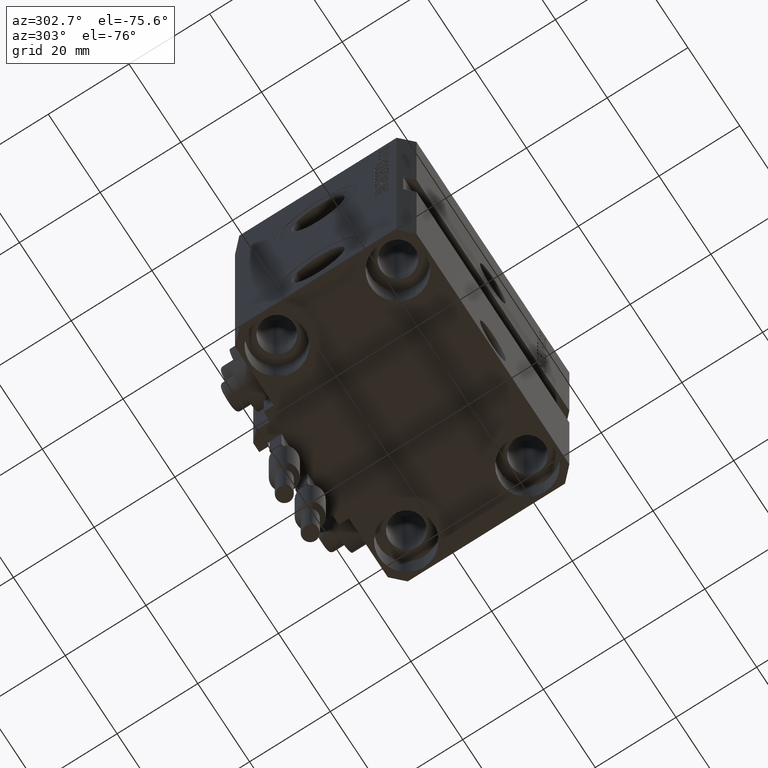
[diagram: clean part render]
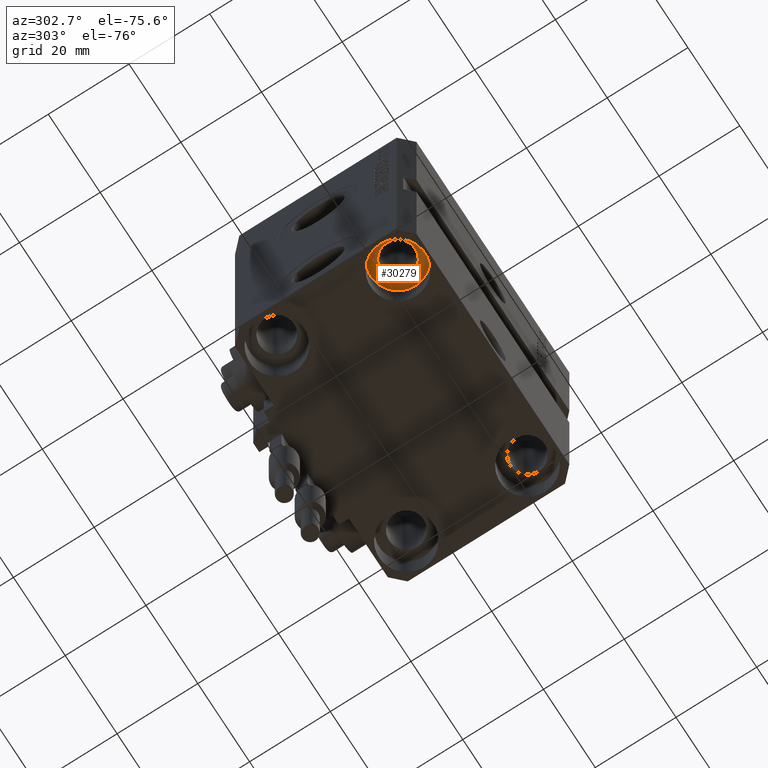
[diagram: same view with one face highlighted and labeled with its STEP entity id]
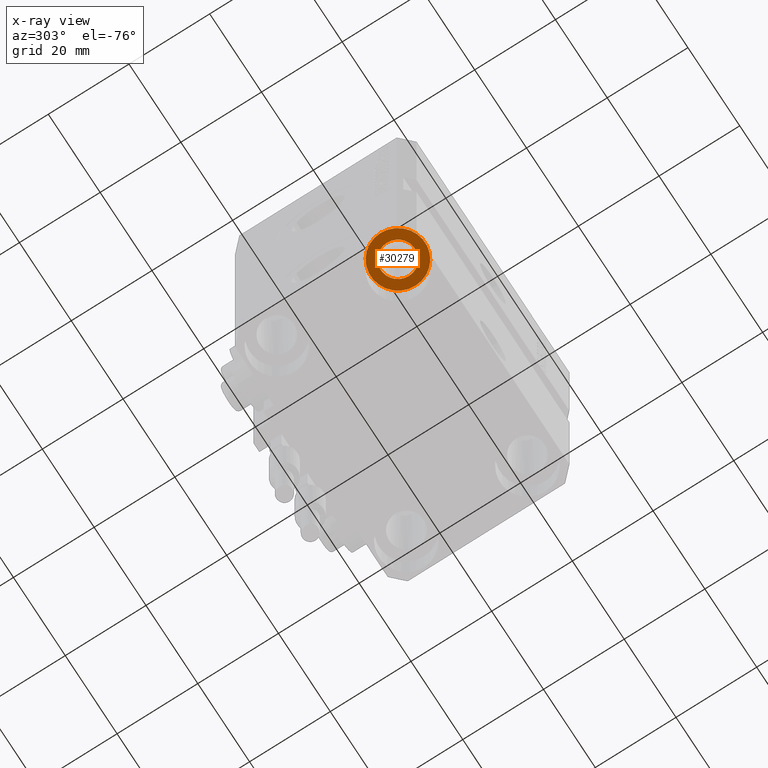
[diagram: x-ray of the same camera — body ghosted, the highlighted face saturated]
A machine part, auxiliary view. The second image highlights one B-rep face of the part: STEP entity #30279.
The next image is the same camera in x-ray: the body ghosted, the highlighted face saturated — about 0% of this face is hidden behind the body in this view.
In plain terms, the highlighted planar face has unit normal (0, 0, -1).
Its self-contained STEP definition (entity closure, byte-faithful):
#890 = EDGE_LOOP ( 'NONE', ( #30896, #26093 ) ) ;
#2555 = AXIS2_PLACEMENT_3D ( 'NONE', #25049, #13638, #20927 ) ;
#3192 = PLANE ( 'NONE',  #28669 ) ;
#4524 = VERTEX_POINT ( 'NONE', #47265 ) ;
#5162 = DIRECTION ( 'NONE',  ( -1.000000000000000000, 0.000000000000000000, 0.000000000000000000 ) ) ;
#5592 = VERTEX_POINT ( 'NONE', #46861 ) ;
#5789 = ORIENTED_EDGE ( 'NONE', *, *, #15936, .F. ) ;
#7679 = CARTESIAN_POINT ( 'NONE',  ( -31.75000000004154899, -15.00000000000000000, -68.00000000000000000 ) ) ;
#8848 = AXIS2_PLACEMENT_3D ( 'NONE', #42282, #45228, #5162 ) ;
#9513 = CIRCLE ( 'NONE', #2555, 6.750000000041541881 ) ;
#9648 = CIRCLE ( 'NONE', #8848, 4.250000000041540105 ) ;
#9977 = DIRECTION ( 'NONE',  ( 1.000000000000000000, 0.000000000000000000, 0.000000000000000000 ) ) ;
#11440 = EDGE_CURVE ( 'NONE', #4524, #12273, #29559, .T. ) ;
#11505 = ORIENTED_EDGE ( 'NONE', *, *, #11440, .F. ) ;
#12273 = VERTEX_POINT ( 'NONE', #7679 ) ;
#13628 = FACE_BOUND ( 'NONE', #890, .T. ) ;
#13638 = DIRECTION ( 'NONE',  ( -0.000000000000000000, -0.000000000000000000, 1.000000000000000000 ) ) ;
#15936 = EDGE_CURVE ( 'NONE', #12273, #4524, #9513, .T. ) ;
#18001 = DIRECTION ( 'NONE',  ( 0.000000000000000000, 0.000000000000000000, -1.000000000000000000 ) ) ;
#19916 = DIRECTION ( 'NONE',  ( 1.000000000000000000, 0.000000000000000000, 0.000000000000000000 ) ) ;
#20927 = DIRECTION ( 'NONE',  ( 1.000000000000000000, 0.000000000000000000, 0.000000000000000000 ) ) ;
#21423 = DIRECTION ( 'NONE',  ( 0.000000000000000000, 0.000000000000000000, -1.000000000000000000 ) ) ;
#25049 = CARTESIAN_POINT ( 'NONE',  ( -25.00000000000000355, -15.00000000000000000, -68.00000000000000000 ) ) ;
#25555 = CARTESIAN_POINT ( 'NONE',  ( -25.00000000000000355, -15.00000000000000000, -68.00000000000000000 ) ) ;
#26093 = ORIENTED_EDGE ( 'NONE', *, *, #26359, .F. ) ;
#26359 = EDGE_CURVE ( 'NONE', #5592, #35490, #44122, .T. ) ;
#26740 = DIRECTION ( 'NONE',  ( -0.000000000000000000, -0.000000000000000000, 1.000000000000000000 ) ) ;
#28445 = FACE_OUTER_BOUND ( 'NONE', #37835, .T. ) ;
#28669 = AXIS2_PLACEMENT_3D ( 'NONE', #43228, #18001, #9977 ) ;
#29195 = DIRECTION ( 'NONE',  ( -1.000000000000000000, 0.000000000000000000, 0.000000000000000000 ) ) ;
#29559 = CIRCLE ( 'NONE', #33397, 6.750000000041541881 ) ;
#30279 = ADVANCED_FACE ( 'NONE', ( #13628, #28445 ), #3192, .T. ) ;
#30896 = ORIENTED_EDGE ( 'NONE', *, *, #41065, .F. ) ;
#33397 = AXIS2_PLACEMENT_3D ( 'NONE', #41991, #26740, #19916 ) ;
#35490 = VERTEX_POINT ( 'NONE', #46460 ) ;
#37835 = EDGE_LOOP ( 'NONE', ( #5789, #11505 ) ) ;
#41065 = EDGE_CURVE ( 'NONE', #35490, #5592, #9648, .T. ) ;
#41991 = CARTESIAN_POINT ( 'NONE',  ( -25.00000000000000355, -15.00000000000000000, -68.00000000000000000 ) ) ;
#42282 = CARTESIAN_POINT ( 'NONE',  ( -25.00000000000000355, -15.00000000000000000, -68.00000000000000000 ) ) ;
#43228 = CARTESIAN_POINT ( 'NONE',  ( -25.00000000000000355, -15.00000000000000000, -68.00000000000000000 ) ) ;
#44122 = CIRCLE ( 'NONE', #44937, 4.250000000041540105 ) ;
#44937 = AXIS2_PLACEMENT_3D ( 'NONE', #25555, #21423, #29195 ) ;
#45228 = DIRECTION ( 'NONE',  ( 0.000000000000000000, 0.000000000000000000, -1.000000000000000000 ) ) ;
#46460 = CARTESIAN_POINT ( 'NONE',  ( -20.74999999995846522, -15.00000000000000000, -68.00000000000000000 ) ) ;
#46861 = CARTESIAN_POINT ( 'NONE',  ( -29.25000000004154543, -15.00000000000000000, -68.00000000000000000 ) ) ;
#47265 = CARTESIAN_POINT ( 'NONE',  ( -18.24999999995845812, -15.00000000000000000, -68.00000000000000000 ) ) ;